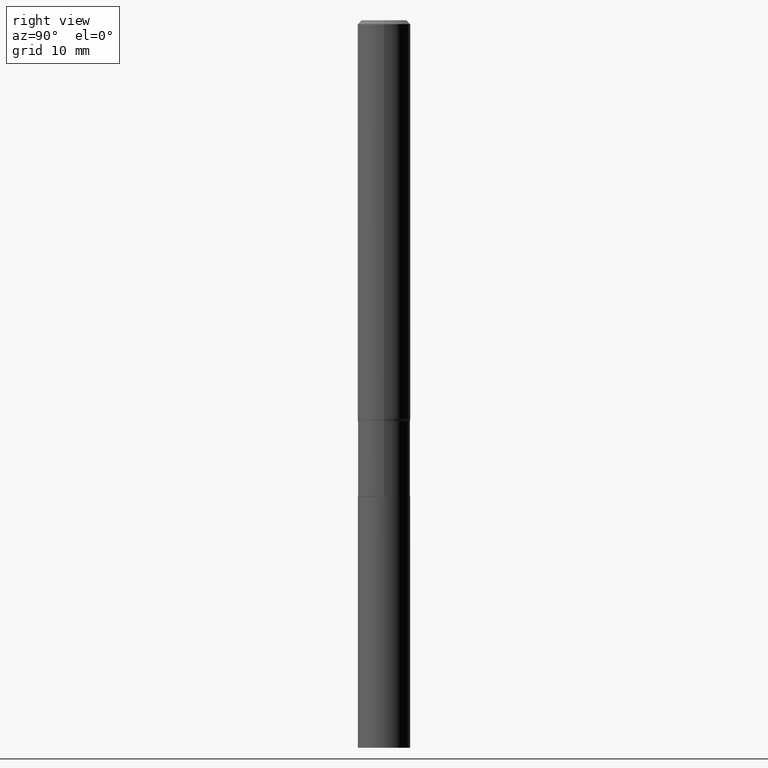
[diagram: clean part render]
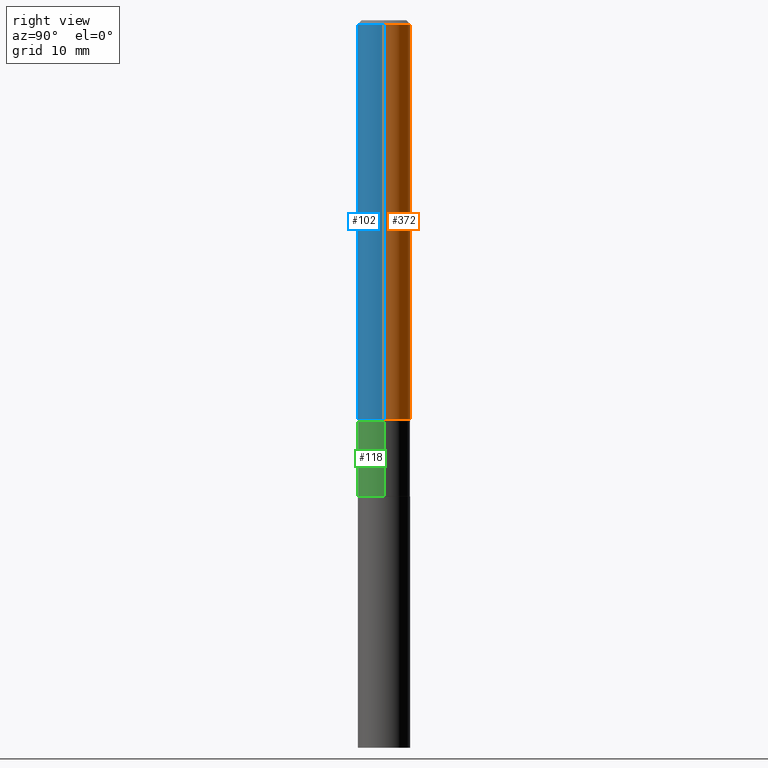
[diagram: same view with three faces highlighted in distinct colors, each labeled with its STEP entity id]
A machine part, right view with three faces highlighted in distinct colors.
Their STEP definitions:

[orange] entity #372 — the highlighted cylindrical surface (edge-blend (fillet) strip) has radius 4.0005 mm, axis along (-0, 0, 1).
#2 = AXIS2_PLACEMENT_3D ( 'NONE', #353, #29, #392 ) ;
#6 = LINE ( 'NONE', #117, #183 ) ;
#14 = CARTESIAN_POINT ( 'NONE',  ( 0.000000000000000000, 0.000000000000000000, 0.000000000000000000 ) ) ;
#29 = DIRECTION ( 'NONE',  ( -2.445468806185136597E-29, 3.491481338843145583E-15, 1.000000000000000000 ) ) ;
#39 = EDGE_CURVE ( 'NONE', #160, #162, #274, .T. ) ;
#70 = EDGE_CURVE ( 'NONE', #203, #368, #106, .T. ) ;
#85 = CARTESIAN_POINT ( 'NONE',  ( -0.1575000000000000289, -3.065171290135835767E-15, -0.02362500000000015976 ) ) ;
#106 = CIRCLE ( 'NONE', #416, 0.1575000000000000289 ) ;
#117 = CARTESIAN_POINT ( 'NONE',  ( 0.1575000000000001676, -1.099816621735588269E-15, 7.679978421878606441E-30 ) ) ;
#140 = CARTESIAN_POINT ( 'NONE',  ( 0.1575000000000002232, -9.385882573021411135E-15, -2.373223611165367508 ) ) ;
#147 = CARTESIAN_POINT ( 'NONE',  ( 5.777420054612423732E-31, -8.248624663016986467E-17, -0.02362500000000015976 ) ) ;
#160 = VERTEX_POINT ( 'NONE', #140 ) ;
#162 = VERTEX_POINT ( 'NONE', #318 ) ;
#183 = VECTOR ( 'NONE', #263, 39.37007874015748143 ) ;
#203 = VERTEX_POINT ( 'NONE', #437 ) ;
#226 = FACE_OUTER_BOUND ( 'NONE', #454, .T. ) ;
#263 = DIRECTION ( 'NONE',  ( -2.445468806185136877E-29, 3.491481338843145188E-15, 1.000000000000000000 ) ) ;
#265 = CARTESIAN_POINT ( 'NONE',  ( -0.1575000000000001676, 1.119104808822158984E-15, -7.747322767151485392E-30 ) ) ;
#273 = ORIENTED_EDGE ( 'NONE', *, *, #357, .T. ) ;
#274 = CIRCLE ( 'NONE', #2, 0.1575000000000002787 ) ;
#292 = DIRECTION ( 'NONE',  ( -2.445468806185136597E-29, 3.491481338843145583E-15, 1.000000000000000000 ) ) ;
#303 = DIRECTION ( 'NONE',  ( 1.000000000000000000, -6.982962677686267499E-15, 4.876176775795935232E-29 ) ) ;
#305 = EDGE_CURVE ( 'NONE', #160, #203, #6, .T. ) ;
#312 = VECTOR ( 'NONE', #405, 39.37007874015748143 ) ;
#318 = CARTESIAN_POINT ( 'NONE',  ( -0.1575000000000002232, -7.166961142463663685E-15, -2.373223611165367508 ) ) ;
#337 = ORIENTED_EDGE ( 'NONE', *, *, #70, .F. ) ;
#352 = AXIS2_PLACEMENT_3D ( 'NONE', #14, #377, #303 ) ;
#353 = CARTESIAN_POINT ( 'NONE',  ( 5.803644311206949741E-29, -8.286065951285822866E-15, -2.373223611165367508 ) ) ;
#357 = EDGE_CURVE ( 'NONE', #162, #368, #445, .T. ) ;
#368 = VERTEX_POINT ( 'NONE', #85 ) ;
#372 = ADVANCED_FACE ( 'NONE', ( #226 ), #373, .T. ) ;
#373 = CYLINDRICAL_SURFACE ( 'NONE', #352, 0.1575000000000001676 ) ;
#376 = ORIENTED_EDGE ( 'NONE', *, *, #305, .F. ) ;
#377 = DIRECTION ( 'NONE',  ( -2.445468806185136597E-29, 3.491481338843145583E-15, 1.000000000000000000 ) ) ;
#392 = DIRECTION ( 'NONE',  ( 1.000000000000000000, -6.982962677686261977E-15, 0.000000000000000000 ) ) ;
#396 = DIRECTION ( 'NONE',  ( 1.000000000000000000, -6.982962677686267499E-15, 0.000000000000000000 ) ) ;
#405 = DIRECTION ( 'NONE',  ( -2.445468806185136877E-29, 3.491481338843145188E-15, 1.000000000000000000 ) ) ;
#416 = AXIS2_PLACEMENT_3D ( 'NONE', #147, #292, #396 ) ;
#419 = ORIENTED_EDGE ( 'NONE', *, *, #39, .T. ) ;
#437 = CARTESIAN_POINT ( 'NONE',  ( 0.1575000000000000289, -1.182302868365756877E-15, -0.02362500000000015976 ) ) ;
#445 = LINE ( 'NONE', #265, #312 ) ;
#454 = EDGE_LOOP ( 'NONE', ( #419, #273, #337, #376 ) ) ;

[blue] entity #102 — the highlighted cylindrical surface (edge-blend (fillet) strip) has radius 4.0005 mm, axis along (-0, 0, 1).
#1 = FACE_OUTER_BOUND ( 'NONE', #21, .T. ) ;
#6 = LINE ( 'NONE', #117, #183 ) ;
#21 = EDGE_LOOP ( 'NONE', ( #133, #403, #155, #259 ) ) ;
#49 = CIRCLE ( 'NONE', #295, 0.1575000000000000289 ) ;
#85 = CARTESIAN_POINT ( 'NONE',  ( -0.1575000000000000289, -3.065171290135835767E-15, -0.02362500000000015976 ) ) ;
#102 = ADVANCED_FACE ( 'NONE', ( #1 ), #179, .T. ) ;
#117 = CARTESIAN_POINT ( 'NONE',  ( 0.1575000000000001676, -1.099816621735588269E-15, 7.679978421878606441E-30 ) ) ;
#120 = DIRECTION ( 'NONE',  ( 1.000000000000000000, -6.982962677686261977E-15, 0.000000000000000000 ) ) ;
#133 = ORIENTED_EDGE ( 'NONE', *, *, #357, .F. ) ;
#140 = CARTESIAN_POINT ( 'NONE',  ( 0.1575000000000002232, -9.385882573021411135E-15, -2.373223611165367508 ) ) ;
#151 = DIRECTION ( 'NONE',  ( -2.445468806185136597E-29, 3.491481338843145583E-15, 1.000000000000000000 ) ) ;
#155 = ORIENTED_EDGE ( 'NONE', *, *, #305, .T. ) ;
#160 = VERTEX_POINT ( 'NONE', #140 ) ;
#162 = VERTEX_POINT ( 'NONE', #318 ) ;
#179 = CYLINDRICAL_SURFACE ( 'NONE', #383, 0.1575000000000001676 ) ;
#183 = VECTOR ( 'NONE', #263, 39.37007874015748143 ) ;
#191 = DIRECTION ( 'NONE',  ( -2.445468806185136597E-29, 3.491481338843145583E-15, 1.000000000000000000 ) ) ;
#203 = VERTEX_POINT ( 'NONE', #437 ) ;
#222 = DIRECTION ( 'NONE',  ( 1.000000000000000000, -6.982962677686267499E-15, 0.000000000000000000 ) ) ;
#228 = EDGE_CURVE ( 'NONE', #162, #160, #364, .T. ) ;
#258 = CARTESIAN_POINT ( 'NONE',  ( 5.803644311206949741E-29, -8.286065951285822866E-15, -2.373223611165367508 ) ) ;
#259 = ORIENTED_EDGE ( 'NONE', *, *, #276, .F. ) ;
#263 = DIRECTION ( 'NONE',  ( -2.445468806185136877E-29, 3.491481338843145188E-15, 1.000000000000000000 ) ) ;
#265 = CARTESIAN_POINT ( 'NONE',  ( -0.1575000000000001676, 1.119104808822158984E-15, -7.747322767151485392E-30 ) ) ;
#276 = EDGE_CURVE ( 'NONE', #368, #203, #49, .T. ) ;
#295 = AXIS2_PLACEMENT_3D ( 'NONE', #328, #191, #222 ) ;
#305 = EDGE_CURVE ( 'NONE', #160, #203, #6, .T. ) ;
#312 = VECTOR ( 'NONE', #405, 39.37007874015748143 ) ;
#318 = CARTESIAN_POINT ( 'NONE',  ( -0.1575000000000002232, -7.166961142463663685E-15, -2.373223611165367508 ) ) ;
#322 = DIRECTION ( 'NONE',  ( -2.445468806185136597E-29, 3.491481338843145583E-15, 1.000000000000000000 ) ) ;
#328 = CARTESIAN_POINT ( 'NONE',  ( 5.777420054612423732E-31, -8.248624663016986467E-17, -0.02362500000000015976 ) ) ;
#357 = EDGE_CURVE ( 'NONE', #162, #368, #445, .T. ) ;
#364 = CIRCLE ( 'NONE', #371, 0.1575000000000002787 ) ;
#368 = VERTEX_POINT ( 'NONE', #85 ) ;
#371 = AXIS2_PLACEMENT_3D ( 'NONE', #258, #151, #120 ) ;
#383 = AXIS2_PLACEMENT_3D ( 'NONE', #395, #322, #436 ) ;
#395 = CARTESIAN_POINT ( 'NONE',  ( 0.000000000000000000, 0.000000000000000000, 0.000000000000000000 ) ) ;
#403 = ORIENTED_EDGE ( 'NONE', *, *, #228, .T. ) ;
#405 = DIRECTION ( 'NONE',  ( -2.445468806185136877E-29, 3.491481338843145188E-15, 1.000000000000000000 ) ) ;
#436 = DIRECTION ( 'NONE',  ( 1.000000000000000000, -6.982962677686267499E-15, 4.876176775795935232E-29 ) ) ;
#437 = CARTESIAN_POINT ( 'NONE',  ( 0.1575000000000000289, -1.182302868365756877E-15, -0.02362500000000015976 ) ) ;
#445 = LINE ( 'NONE', #265, #312 ) ;

[green] entity #118 — the highlighted cylindrical surface (edge-blend (fillet) strip) has radius 3.9497 mm, axis along (-0, 0, 1).
#9 = CARTESIAN_POINT ( 'NONE',  ( -0.1554999999999998883, -8.016950191754647736E-15, -2.391000000000000458 ) ) ;
#12 = ORIENTED_EDGE ( 'NONE', *, *, #138, .F. ) ;
#19 = VECTOR ( 'NONE', #293, 39.37007874015748143 ) ;
#33 = CIRCLE ( 'NONE', #146, 0.1554999999999999993 ) ;
#47 = CARTESIAN_POINT ( 'NONE',  ( 0.1554999999999999438, -1.085850696380214268E-15, 7.582454886362678420E-30 ) ) ;
#63 = VERTEX_POINT ( 'NONE', #390 ) ;
#69 = CYLINDRICAL_SURFACE ( 'NONE', #398, 0.1554999999999999438 ) ;
#104 = LINE ( 'NONE', #432, #233 ) ;
#109 = DIRECTION ( 'NONE',  ( 1.000000000000000000, -6.982962677686271444E-15, 0.000000000000000000 ) ) ;
#110 = EDGE_CURVE ( 'NONE', #448, #343, #104, .T. ) ;
#118 = ADVANCED_FACE ( 'NONE', ( #433 ), #69, .T. ) ;
#138 = EDGE_CURVE ( 'NONE', #343, #462, #465, .T. ) ;
#143 = DIRECTION ( 'NONE',  ( 1.000000000000000000, -6.982962677686268288E-15, 4.876176775795936353E-29 ) ) ;
#146 = AXIS2_PLACEMENT_3D ( 'NONE', #216, #401, #296 ) ;
#149 = LINE ( 'NONE', #47, #19 ) ;
#167 = ORIENTED_EDGE ( 'NONE', *, *, #329, .T. ) ;
#211 = DIRECTION ( 'NONE',  ( -2.445468806185136597E-29, 3.491481338843145583E-15, 1.000000000000000000 ) ) ;
#216 = CARTESIAN_POINT ( 'NONE',  ( 6.930947690489914621E-29, -9.895556410549243682E-15, -2.834200000000000053 ) ) ;
#221 = ORIENTED_EDGE ( 'NONE', *, *, #256, .T. ) ;
#233 = VECTOR ( 'NONE', #248, 39.37007874015748143 ) ;
#248 = DIRECTION ( 'NONE',  ( -2.445468806185136877E-29, 3.491481338843145188E-15, 1.000000000000000000 ) ) ;
#256 = EDGE_CURVE ( 'NONE', #448, #63, #33, .T. ) ;
#293 = DIRECTION ( 'NONE',  ( -2.445468806185136877E-29, 3.491481338843145188E-15, 1.000000000000000000 ) ) ;
#296 = DIRECTION ( 'NONE',  ( 1.000000000000000000, -6.982962677686261977E-15, 0.000000000000000000 ) ) ;
#319 = AXIS2_PLACEMENT_3D ( 'NONE', #324, #211, #109 ) ;
#320 = DIRECTION ( 'NONE',  ( -2.445468806185136597E-29, 3.491481338843145583E-15, 1.000000000000000000 ) ) ;
#324 = CARTESIAN_POINT ( 'NONE',  ( 5.847115915588662338E-29, -8.348131881173961387E-15, -2.391000000000000458 ) ) ;
#329 = EDGE_CURVE ( 'NONE', #63, #462, #149, .T. ) ;
#340 = CARTESIAN_POINT ( 'NONE',  ( 0.1554999999999998883, -9.433982577554176050E-15, -2.391000000000000458 ) ) ;
#341 = EDGE_LOOP ( 'NONE', ( #370, #221, #167, #12 ) ) ;
#343 = VERTEX_POINT ( 'NONE', #9 ) ;
#351 = CARTESIAN_POINT ( 'NONE',  ( -0.1554999999999999993, -8.016950191754646159E-15, -2.834200000000000053 ) ) ;
#356 = CARTESIAN_POINT ( 'NONE',  ( 0.000000000000000000, 0.000000000000000000, 0.000000000000000000 ) ) ;
#370 = ORIENTED_EDGE ( 'NONE', *, *, #110, .F. ) ;
#390 = CARTESIAN_POINT ( 'NONE',  ( 0.1554999999999999993, -1.098140710692945677E-14, -2.834200000000000053 ) ) ;
#398 = AXIS2_PLACEMENT_3D ( 'NONE', #356, #320, #143 ) ;
#401 = DIRECTION ( 'NONE',  ( -2.445468806185136597E-29, 3.491481338843145583E-15, 1.000000000000000000 ) ) ;
#432 = CARTESIAN_POINT ( 'NONE',  ( -0.1554999999999999438, 1.104893954106955390E-15, -7.648944065346376022E-30 ) ) ;
#433 = FACE_OUTER_BOUND ( 'NONE', #341, .T. ) ;
#448 = VERTEX_POINT ( 'NONE', #351 ) ;
#462 = VERTEX_POINT ( 'NONE', #340 ) ;
#465 = CIRCLE ( 'NONE', #319, 0.1554999999999998883 ) ;